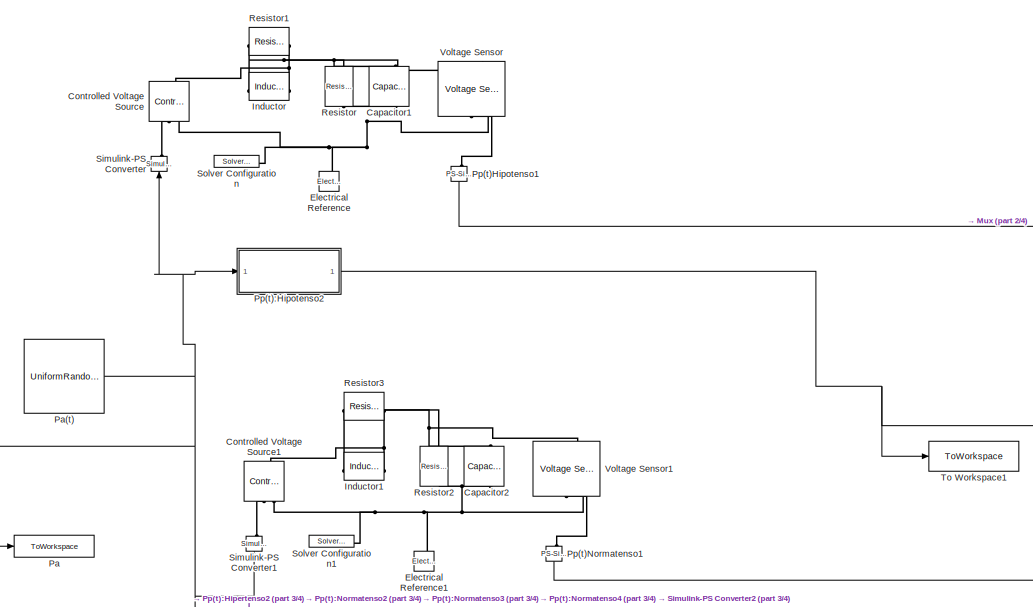
[diagram: root canvas - part 1/4, top center region]
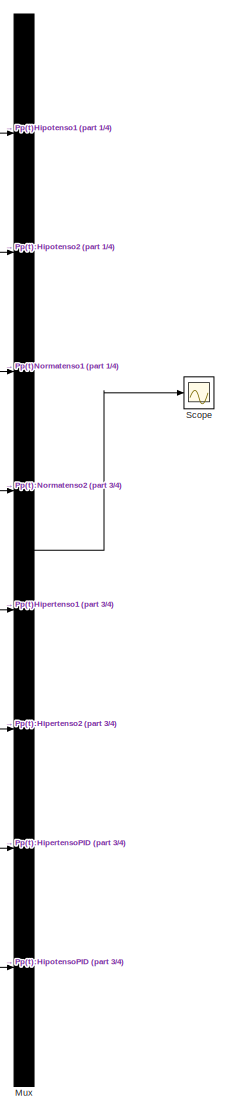
[diagram: root canvas - part 2/4, right side, full height]
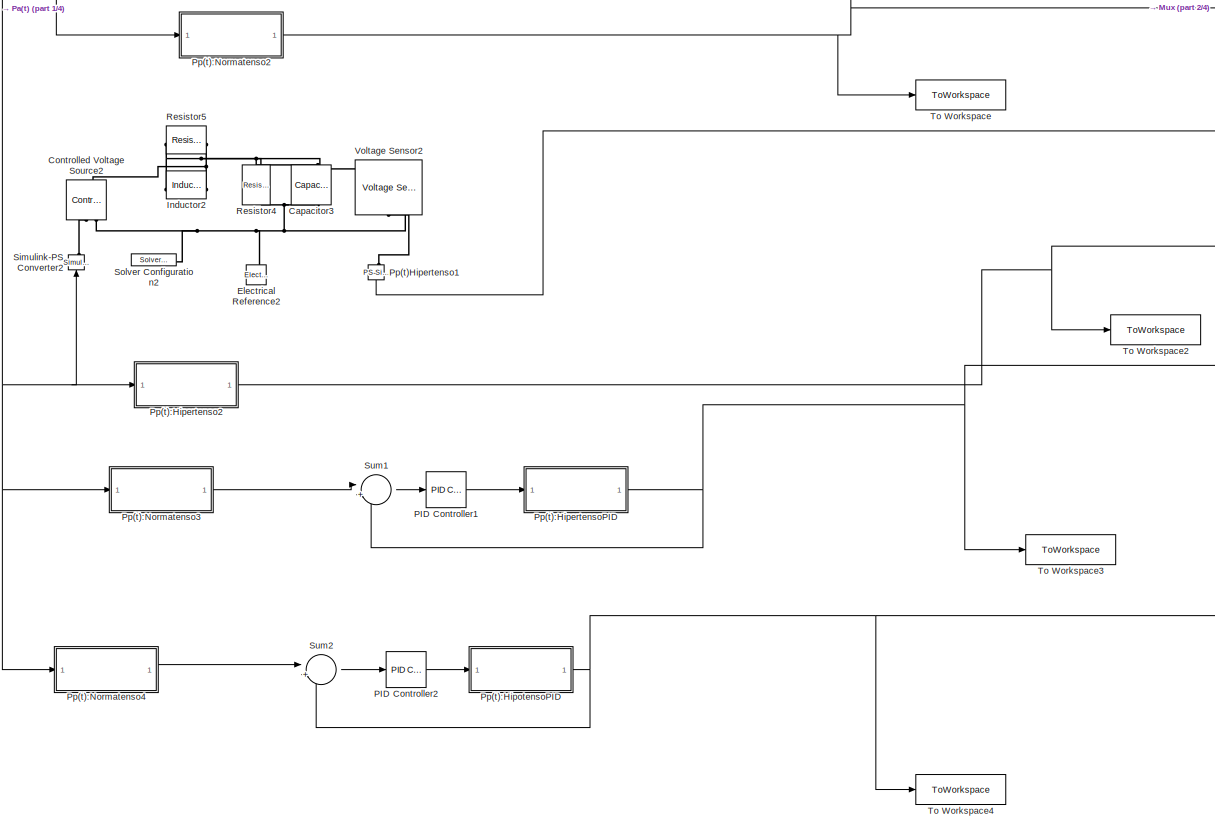
[diagram: root canvas - part 3/4, bottom center region]
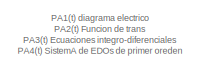
[diagram: root canvas - part 4/4, middle left region]
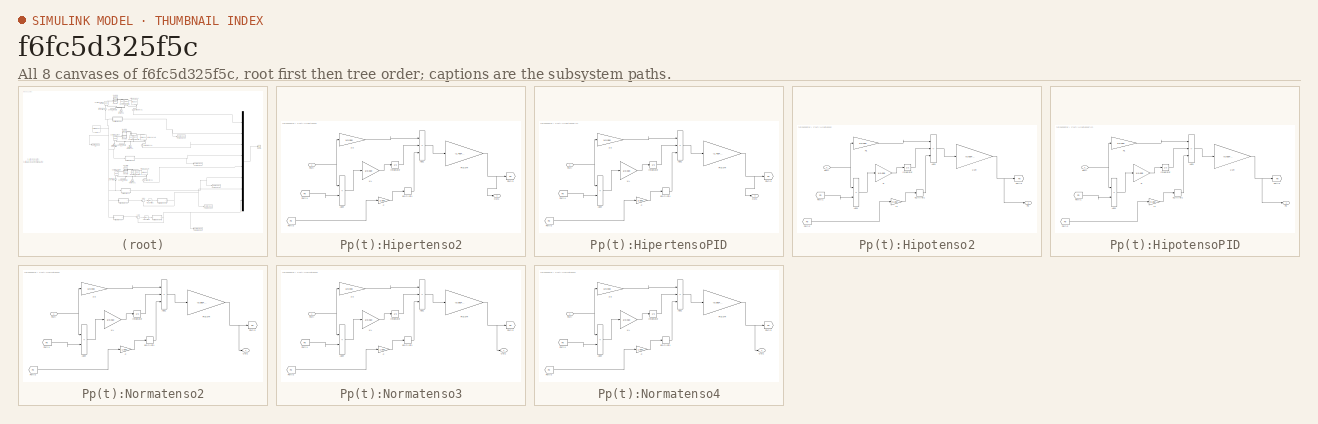
[diagram: thumbnail index - all 8 canvases of the model, root first then tree order]
MODEL slx_f6fc5d325f5c
KIND model
CONFIG AbsTol = auto
CONFIG EnableMultiTasking = off
CONFIG FixedStep = auto
CONFIG MaxStep = auto
CONFIG MinStep = auto
CONFIG RelTol = 1e-3
CONFIG SampleTimeConstraint = Unconstrained
CONFIG SolverName = VariableStepAuto
CONFIG StartTime = 0.0
CONFIG StopTime = 10.0
BLOCK [Reference] Capacitor1  REF=ee_lib/Passive/Capacitor
  NameLocation = left
  SourceBlock = ee_lib/Passive/Capacitor
  SourceType = Capacitor
BLOCK [Reference] Capacitor2  REF=ee_lib/Passive/Capacitor
  NameLocation = left
  SourceBlock = ee_lib/Passive/Capacitor
  SourceType = Capacitor
BLOCK [Reference] Capacitor3  REF=ee_lib/Passive/Capacitor
  NameLocation = left
  SourceBlock = ee_lib/Passive/Capacitor
  SourceType = Capacitor
BLOCK [Reference] Controlled Voltage Source  REF=fl_lib/Electrical/Electrical Sources/Controlled Voltage
Source
  NameLocation = right
  SourceBlock = fl_lib/Electrical/Electrical Sources/Controlled Voltage\nSource
  SourceType = Controlled Voltage\nSource
BLOCK [Reference] Controlled Voltage Source1  REF=fl_lib/Electrical/Electrical Sources/Controlled Voltage
Source
  NameLocation = right
  SourceBlock = fl_lib/Electrical/Electrical Sources/Controlled Voltage\nSource
  SourceType = Controlled Voltage\nSource
BLOCK [Reference] Controlled Voltage Source2  REF=fl_lib/Electrical/Electrical Sources/Controlled Voltage
Source
  NameLocation = right
  SourceBlock = fl_lib/Electrical/Electrical Sources/Controlled Voltage\nSource
  SourceType = Controlled Voltage\nSource
BLOCK [Reference] Electrical Reference  REF=fl_lib/Electrical/Electrical Elements/Electrical Reference
  NameLocation = right
  SourceBlock = fl_lib/Electrical/Electrical Elements/Electrical Reference
  SourceType = Electrical Reference
BLOCK [Reference] Electrical Reference1  REF=fl_lib/Electrical/Electrical Elements/Electrical Reference
  NameLocation = right
  SourceBlock = fl_lib/Electrical/Electrical Elements/Electrical Reference
  SourceType = Electrical Reference
BLOCK [Reference] Electrical Reference2  REF=fl_lib/Electrical/Electrical Elements/Electrical Reference
  NameLocation = right
  SourceBlock = fl_lib/Electrical/Electrical Elements/Electrical Reference
  SourceType = Electrical Reference
BLOCK [Reference] Inductor  REF=fl_lib/Electrical/Electrical Elements/Inductor
  SourceBlock = fl_lib/Electrical/Electrical Elements/Inductor
  SourceType = Inductor
BLOCK [Reference] Inductor1  REF=fl_lib/Electrical/Electrical Elements/Inductor
  SourceBlock = fl_lib/Electrical/Electrical Elements/Inductor
  SourceType = Inductor
BLOCK [Reference] Inductor2  REF=fl_lib/Electrical/Electrical Elements/Inductor
  SourceBlock = fl_lib/Electrical/Electrical Elements/Inductor
  SourceType = Inductor
BLOCK [Mux] Mux
  DisplayOption = bar
  Inputs = 8
BLOCK [Reference] PID Controller1  REF=slpidlib/PID Controller
  LibrarySourceBlock = simulink/Continuous/PID Controller
  SourceBlock = slpidlib/PID Controller
  SourceType = PID 1dof
BLOCK [Reference] PID Controller2  REF=slpidlib/PID Controller
  LibrarySourceBlock = simulink/Continuous/PID Controller
  SourceBlock = slpidlib/PID Controller
  SourceType = PID 1dof
BLOCK [ToWorkspace] Pa
  FixptAsFi = on
  MaxDataPoints = inf
  SampleTime = -1
  VariableName = Pa
BLOCK [UniformRandomNumber] Pa(t)
  Minimum = -0.2
  SampleTime = 0.5
  Seed = 106
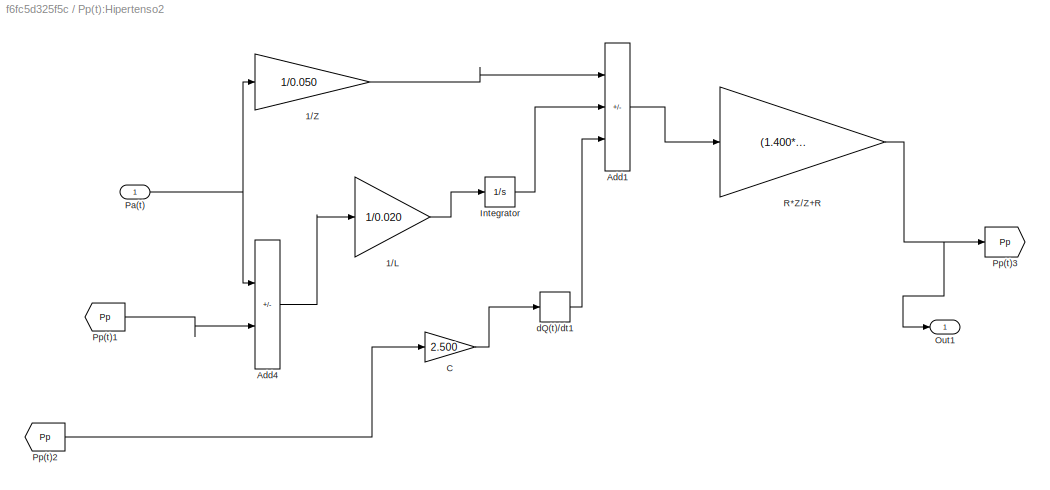
BLOCK [SubSystem] Pp(t):Hipertenso2
BLOCK [Gain] Pp(t):Hipertenso2/1//L
  Gain = 1/0.020
BLOCK [Gain] Pp(t):Hipertenso2/1//Z
  Gain = 1/0.050
BLOCK [Sum] Pp(t):Hipertenso2/Add1
  IconShape = rectangular
  Inputs = ++-
BLOCK [Sum] Pp(t):Hipertenso2/Add4
  IconShape = rectangular
  Inputs = +-
BLOCK [Gain] Pp(t):Hipertenso2/C
  Gain = 2.500
BLOCK [Integrator] Pp(t):Hipertenso2/Integrator
BLOCK [Outport] Pp(t):Hipertenso2/Out1
BLOCK [Inport] Pp(t):Hipertenso2/Pa(t)
BLOCK [From] Pp(t):Hipertenso2/Pp(t)1
  GotoTag = Pp
BLOCK [From] Pp(t):Hipertenso2/Pp(t)2
  GotoTag = Pp
BLOCK [Goto] Pp(t):Hipertenso2/Pp(t)3
  GotoTag = Pp
BLOCK [Gain] Pp(t):Hipertenso2/R*Z//Z+R
  Gain = (1.400*0.050)/(0.050+1.400)
BLOCK [Derivative] Pp(t):Hipertenso2/dQ(t)//dt1
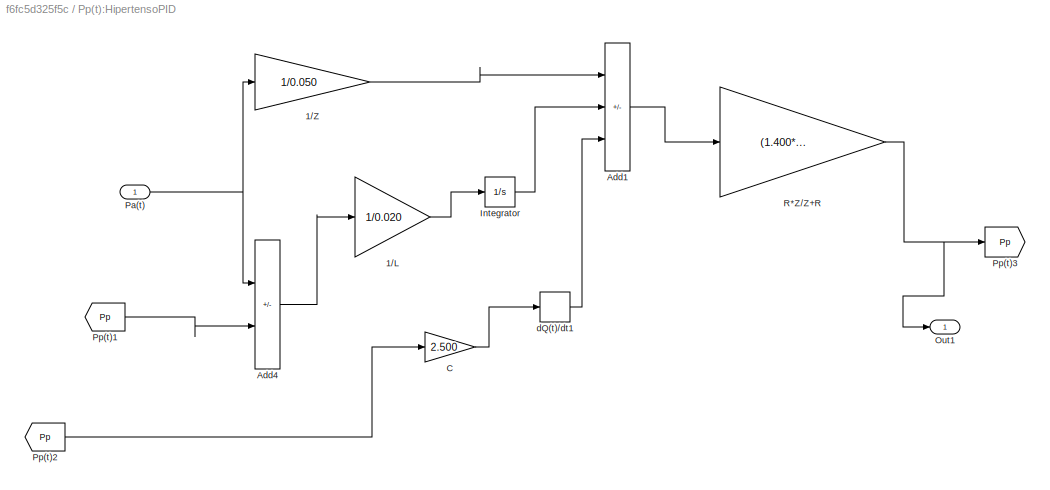
BLOCK [SubSystem] Pp(t):HipertensoPID
BLOCK [Gain] Pp(t):HipertensoPID/1//L
  Gain = 1/0.020
BLOCK [Gain] Pp(t):HipertensoPID/1//Z
  Gain = 1/0.050
BLOCK [Sum] Pp(t):HipertensoPID/Add1
  IconShape = rectangular
  Inputs = ++-
BLOCK [Sum] Pp(t):HipertensoPID/Add4
  IconShape = rectangular
  Inputs = +-
BLOCK [Gain] Pp(t):HipertensoPID/C
  Gain = 2.500
BLOCK [Integrator] Pp(t):HipertensoPID/Integrator
BLOCK [Outport] Pp(t):HipertensoPID/Out1
BLOCK [Inport] Pp(t):HipertensoPID/Pa(t)
BLOCK [From] Pp(t):HipertensoPID/Pp(t)1
  GotoTag = Pp
BLOCK [From] Pp(t):HipertensoPID/Pp(t)2
  GotoTag = Pp
BLOCK [Goto] Pp(t):HipertensoPID/Pp(t)3
  GotoTag = Pp
BLOCK [Gain] Pp(t):HipertensoPID/R*Z//Z+R
  Gain = (1.400*0.050)/(0.050+1.400)
BLOCK [Derivative] Pp(t):HipertensoPID/dQ(t)//dt1
BLOCK [SubSystem] Pp(t):Hipotenso2
BLOCK [Gain] Pp(t):Hipotenso2/1//2R
  Gain = (0.600*0.020)/(0.020+0.600)
BLOCK [Sum] Pp(t):Hipotenso2/Add1
  IconShape = rectangular
  Inputs = ++-
BLOCK [Sum] Pp(t):Hipotenso2/Add4
  IconShape = rectangular
  Inputs = +-
BLOCK [Integrator] Pp(t):Hipotenso2/Integrator
BLOCK [Gain] Pp(t):Hipotenso2/L1
  Gain = 0.250
BLOCK [Inport] Pp(t):Hipotenso2/Pa(t)
BLOCK [Outport] Pp(t):Hipotenso2/Pp
BLOCK [From] Pp(t):Hipotenso2/Pp(t)1
  GotoTag = Pp
BLOCK [From] Pp(t):Hipotenso2/Pp(t)2
  GotoTag = Pp
BLOCK [Goto] Pp(t):Hipotenso2/Pp(t)3
  GotoTag = Pp
BLOCK [Gain] Pp(t):Hipotenso2/R
  Gain = 1/0.005
BLOCK [Gain] Pp(t):Hipotenso2/R1
  Gain = 1/0.020
BLOCK [Derivative] Pp(t):Hipotenso2/dQ(t)//dt1
BLOCK [SubSystem] Pp(t):HipotensoPID
BLOCK [Gain] Pp(t):HipotensoPID/1//2R
  Gain = (0.600*0.020)/(0.020+0.600)
BLOCK [Sum] Pp(t):HipotensoPID/Add1
  IconShape = rectangular
  Inputs = ++-
BLOCK [Sum] Pp(t):HipotensoPID/Add4
  IconShape = rectangular
  Inputs = +-
BLOCK [Integrator] Pp(t):HipotensoPID/Integrator
BLOCK [Gain] Pp(t):HipotensoPID/L1
  Gain = 0.250
BLOCK [Inport] Pp(t):HipotensoPID/Pa(t)
BLOCK [Outport] Pp(t):HipotensoPID/Pp
BLOCK [From] Pp(t):HipotensoPID/Pp(t)1
  GotoTag = Pp
BLOCK [From] Pp(t):HipotensoPID/Pp(t)2
  GotoTag = Pp
BLOCK [Goto] Pp(t):HipotensoPID/Pp(t)3
  GotoTag = Pp
BLOCK [Gain] Pp(t):HipotensoPID/R
  Gain = 1/0.005
BLOCK [Gain] Pp(t):HipotensoPID/R1
  Gain = 1/0.020
BLOCK [Derivative] Pp(t):HipotensoPID/dQ(t)//dt1
BLOCK [SubSystem] Pp(t):Normatenso2
BLOCK [Gain] Pp(t):Normatenso2/1//L
  Gain = 1/0.010
BLOCK [Gain] Pp(t):Normatenso2/1//Z
  Gain = 1/0.033
BLOCK [Sum] Pp(t):Normatenso2/Add1
  IconShape = rectangular
  Inputs = ++-
BLOCK [Sum] Pp(t):Normatenso2/Add4
  IconShape = rectangular
  Inputs = +-
BLOCK [Gain] Pp(t):Normatenso2/C
  Gain = 1.500
BLOCK [Integrator] Pp(t):Normatenso2/Integrator
BLOCK [Outport] Pp(t):Normatenso2/Out1
BLOCK [Inport] Pp(t):Normatenso2/Pa(t)
BLOCK [From] Pp(t):Normatenso2/Pp(t)1
  GotoTag = Pp
BLOCK [From] Pp(t):Normatenso2/Pp(t)2
  GotoTag = Pp
BLOCK [Goto] Pp(t):Normatenso2/Pp(t)3
  GotoTag = Pp
BLOCK [Gain] Pp(t):Normatenso2/R*Z//Z+R
  Gain = (0.950*0.033)/(0.033+0.950)
BLOCK [Derivative] Pp(t):Normatenso2/dQ(t)//dt1
BLOCK [SubSystem] Pp(t):Normatenso3
BLOCK [Gain] Pp(t):Normatenso3/1//L
  Gain = 1/0.010
BLOCK [Gain] Pp(t):Normatenso3/1//Z
  Gain = 1/0.033
BLOCK [Sum] Pp(t):Normatenso3/Add1
  IconShape = rectangular
  Inputs = ++-
BLOCK [Sum] Pp(t):Normatenso3/Add4
  IconShape = rectangular
  Inputs = +-
BLOCK [Gain] Pp(t):Normatenso3/C
  Gain = 1.500
BLOCK [Integrator] Pp(t):Normatenso3/Integrator
BLOCK [Outport] Pp(t):Normatenso3/Out1
BLOCK [Inport] Pp(t):Normatenso3/Pa(t)
BLOCK [From] Pp(t):Normatenso3/Pp(t)1
  GotoTag = Pp
BLOCK [From] Pp(t):Normatenso3/Pp(t)2
  GotoTag = Pp
BLOCK [Goto] Pp(t):Normatenso3/Pp(t)3
  GotoTag = Pp
BLOCK [Gain] Pp(t):Normatenso3/R*Z//Z+R
  Gain = (0.950*0.033)/(0.033+0.950)
BLOCK [Derivative] Pp(t):Normatenso3/dQ(t)//dt1
BLOCK [SubSystem] Pp(t):Normatenso4
BLOCK [Gain] Pp(t):Normatenso4/1//L
  Gain = 1/0.010
BLOCK [Gain] Pp(t):Normatenso4/1//Z
  Gain = 1/0.033
BLOCK [Sum] Pp(t):Normatenso4/Add1
  IconShape = rectangular
  Inputs = ++-
BLOCK [Sum] Pp(t):Normatenso4/Add4
  IconShape = rectangular
  Inputs = +-
BLOCK [Gain] Pp(t):Normatenso4/C
  Gain = 1.500
BLOCK [Integrator] Pp(t):Normatenso4/Integrator
BLOCK [Outport] Pp(t):Normatenso4/Out1
BLOCK [Inport] Pp(t):Normatenso4/Pa(t)
BLOCK [From] Pp(t):Normatenso4/Pp(t)1
  GotoTag = Pp
BLOCK [From] Pp(t):Normatenso4/Pp(t)2
  GotoTag = Pp
BLOCK [Goto] Pp(t):Normatenso4/Pp(t)3
  GotoTag = Pp
BLOCK [Gain] Pp(t):Normatenso4/R*Z//Z+R
  Gain = (0.950*0.033)/(0.033+0.950)
BLOCK [Derivative] Pp(t):Normatenso4/dQ(t)//dt1
BLOCK [Reference] Pp(t)Hipertenso1  REF=nesl_utility/PS-Simulink
Converter
  NameLocation = left
  SourceBlock = nesl_utility/PS-Simulink\nConverter
  SourceType = PS-Simulink\nConverter
BLOCK [Reference] Pp(t)Hipotenso1  REF=nesl_utility/PS-Simulink
Converter
  NameLocation = left
  SourceBlock = nesl_utility/PS-Simulink\nConverter
  SourceType = PS-Simulink\nConverter
BLOCK [Reference] Pp(t)Normatenso1  REF=nesl_utility/PS-Simulink
Converter
  NameLocation = left
  SourceBlock = nesl_utility/PS-Simulink\nConverter
  SourceType = PS-Simulink\nConverter
BLOCK [Reference] Resistor  REF=fl_lib/Electrical/Electrical Elements/Resistor
  NameLocation = left
  SourceBlock = fl_lib/Electrical/Electrical Elements/Resistor
  SourceType = Resistor
BLOCK [Reference] Resistor1  REF=fl_lib/Electrical/Electrical Elements/Resistor
  NameLocation = top
  SourceBlock = fl_lib/Electrical/Electrical Elements/Resistor
  SourceType = Resistor
BLOCK [Reference] Resistor2  REF=fl_lib/Electrical/Electrical Elements/Resistor
  NameLocation = left
  SourceBlock = fl_lib/Electrical/Electrical Elements/Resistor
  SourceType = Resistor
BLOCK [Reference] Resistor3  REF=fl_lib/Electrical/Electrical Elements/Resistor
  NameLocation = top
  SourceBlock = fl_lib/Electrical/Electrical Elements/Resistor
  SourceType = Resistor
BLOCK [Reference] Resistor4  REF=fl_lib/Electrical/Electrical Elements/Resistor
  NameLocation = left
  SourceBlock = fl_lib/Electrical/Electrical Elements/Resistor
  SourceType = Resistor
BLOCK [Reference] Resistor5  REF=fl_lib/Electrical/Electrical Elements/Resistor
  NameLocation = top
  SourceBlock = fl_lib/Electrical/Electrical Elements/Resistor
  SourceType = Resistor
BLOCK [Scope] Scope
  Floating = off
  NumInputPorts = 1
  ScopeSpecificationString = Simulink.scopes.TimeScopeBlockCfg('CurrentConfiguration', extmgr.ConfigurationSet(extmgr.Configuration('Core','General UI',true),extmgr.Configuration('Core','Source UI',true),extmgr.Configuration('Sources','WiredSimulink',true),extmgr.Configuration('Visuals','Time Domain',true,'SerializedDisplays',{struct('MinYLimReal','-0.32996','MaxYLimReal','1.25646','YLabelReal','','MinYLimMag','0.00000','MaxY...<+2048ch>
BLOCK [Reference] Simulink-PS Converter  REF=nesl_utility/Simulink-PS
Converter
  NameLocation = right
  SourceBlock = nesl_utility/Simulink-PS\nConverter
  SourceType = Simulink-PS\nConverter
BLOCK [Reference] Simulink-PS Converter1  REF=nesl_utility/Simulink-PS
Converter
  NameLocation = right
  SourceBlock = nesl_utility/Simulink-PS\nConverter
  SourceType = Simulink-PS\nConverter
BLOCK [Reference] Simulink-PS Converter2  REF=nesl_utility/Simulink-PS
Converter
  NameLocation = right
  SourceBlock = nesl_utility/Simulink-PS\nConverter
  SourceType = Simulink-PS\nConverter
BLOCK [Reference] Solver Configuration  REF=nesl_utility/Solver
Configuration
  SourceBlock = nesl_utility/Solver\nConfiguration
  SourceType = Solver\nConfiguration
BLOCK [Reference] Solver Configuration1  REF=nesl_utility/Solver
Configuration
  SourceBlock = nesl_utility/Solver\nConfiguration
  SourceType = Solver\nConfiguration
BLOCK [Reference] Solver Configuration2  REF=nesl_utility/Solver
Configuration
  SourceBlock = nesl_utility/Solver\nConfiguration
  SourceType = Solver\nConfiguration
BLOCK [Sum] Sum1
  Inputs = |+-
BLOCK [Sum] Sum2
  Inputs = |+-
BLOCK [ToWorkspace] To Workspace
  FixptAsFi = on
  MaxDataPoints = inf
  SampleTime = -1
  VariableName = Pp1
BLOCK [ToWorkspace] To Workspace1
  FixptAsFi = on
  MaxDataPoints = inf
  SampleTime = -1
  VariableName = Pp0
BLOCK [ToWorkspace] To Workspace2
  FixptAsFi = on
  MaxDataPoints = inf
  SampleTime = -1
  VariableName = Pp2
BLOCK [ToWorkspace] To Workspace3
  FixptAsFi = on
  MaxDataPoints = inf
  SampleTime = -1
  VariableName = Pp3
BLOCK [ToWorkspace] To Workspace4
  FixptAsFi = on
  MaxDataPoints = inf
  SampleTime = -1
  VariableName = Pp4
BLOCK [Reference] Voltage Sensor  REF=fl_lib/Electrical/Electrical Sensors/Voltage Sensor
  NameLocation = right
  SourceBlock = fl_lib/Electrical/Electrical Sensors/Voltage Sensor
  SourceType = Voltage Sensor
BLOCK [Reference] Voltage Sensor1  REF=fl_lib/Electrical/Electrical Sensors/Voltage Sensor
  NameLocation = right
  SourceBlock = fl_lib/Electrical/Electrical Sensors/Voltage Sensor
  SourceType = Voltage Sensor
BLOCK [Reference] Voltage Sensor2  REF=fl_lib/Electrical/Electrical Sensors/Voltage Sensor
  NameLocation = right
  SourceBlock = fl_lib/Electrical/Electrical Sensors/Voltage Sensor
  SourceType = Voltage Sensor
ANNOTATION (root): PA1(t) diagrama electrico PA2(t) Funcion de trans PA3(t) Ecuaciones integro-diferenciales PA4(t) SistemA de EDOs de primer oreden
LINE Mux:1 -> Scope:1
LINE PID Controller1:1 -> Pp(t):HipertensoPID:1
LINE PID Controller2:1 -> Pp(t):HipotensoPID:1
NET Pa(t):1 -> Pa:1, Pp(t):Hipertenso2:1, Pp(t):Hipotenso2:1, Pp(t):Normatenso2:1, Pp(t):Normatenso3:1, Pp(t):Normatenso4:1, Simulink-PS Converter1:1, Simulink-PS Converter2:1, Simulink-PS Converter:1
LINE Pp(t):Hipertenso2/1//L:1 -> Pp(t):Hipertenso2/Integrator:1
LINE Pp(t):Hipertenso2/1//Z:1 -> Pp(t):Hipertenso2/Add1:1
LINE Pp(t):Hipertenso2/Add1:1 -> Pp(t):Hipertenso2/R*Z//Z+R:1
LINE Pp(t):Hipertenso2/Add4:1 -> Pp(t):Hipertenso2/1//L:1
LINE Pp(t):Hipertenso2/C:1 -> Pp(t):Hipertenso2/dQ(t)//dt1:1
LINE Pp(t):Hipertenso2/Integrator:1 -> Pp(t):Hipertenso2/Add1:2
NET Pp(t):Hipertenso2/Pa(t):1 -> Pp(t):Hipertenso2/1//Z:1, Pp(t):Hipertenso2/Add4:1
LINE Pp(t):Hipertenso2/Pp(t)1:1 -> Pp(t):Hipertenso2/Add4:2
LINE Pp(t):Hipertenso2/Pp(t)2:1 -> Pp(t):Hipertenso2/C:1
NET Pp(t):Hipertenso2/R*Z//Z+R:1 -> Pp(t):Hipertenso2/Out1:1, Pp(t):Hipertenso2/Pp(t)3:1
LINE Pp(t):Hipertenso2/dQ(t)//dt1:1 -> Pp(t):Hipertenso2/Add1:3
NET Pp(t):Hipertenso2:1 -> Mux:6, To Workspace2:1
LINE Pp(t):HipertensoPID/1//L:1 -> Pp(t):HipertensoPID/Integrator:1
LINE Pp(t):HipertensoPID/1//Z:1 -> Pp(t):HipertensoPID/Add1:1
LINE Pp(t):HipertensoPID/Add1:1 -> Pp(t):HipertensoPID/R*Z//Z+R:1
LINE Pp(t):HipertensoPID/Add4:1 -> Pp(t):HipertensoPID/1//L:1
LINE Pp(t):HipertensoPID/C:1 -> Pp(t):HipertensoPID/dQ(t)//dt1:1
LINE Pp(t):HipertensoPID/Integrator:1 -> Pp(t):HipertensoPID/Add1:2
NET Pp(t):HipertensoPID/Pa(t):1 -> Pp(t):HipertensoPID/1//Z:1, Pp(t):HipertensoPID/Add4:1
LINE Pp(t):HipertensoPID/Pp(t)1:1 -> Pp(t):HipertensoPID/Add4:2
LINE Pp(t):HipertensoPID/Pp(t)2:1 -> Pp(t):HipertensoPID/C:1
NET Pp(t):HipertensoPID/R*Z//Z+R:1 -> Pp(t):HipertensoPID/Out1:1, Pp(t):HipertensoPID/Pp(t)3:1
LINE Pp(t):HipertensoPID/dQ(t)//dt1:1 -> Pp(t):HipertensoPID/Add1:3
NET Pp(t):HipertensoPID:1 -> Mux:7, Sum1:2, To Workspace3:1
NET Pp(t):Hipotenso2/1//2R:1 -> Pp(t):Hipotenso2/Pp(t)3:1, Pp(t):Hipotenso2/Pp:1
LINE Pp(t):Hipotenso2/Add1:1 -> Pp(t):Hipotenso2/1//2R:1
LINE Pp(t):Hipotenso2/Add4:1 -> Pp(t):Hipotenso2/R:1
LINE Pp(t):Hipotenso2/Integrator:1 -> Pp(t):Hipotenso2/Add1:2
LINE Pp(t):Hipotenso2/L1:1 -> Pp(t):Hipotenso2/dQ(t)//dt1:1
NET Pp(t):Hipotenso2/Pa(t):1 -> Pp(t):Hipotenso2/Add4:1, Pp(t):Hipotenso2/R1:1
LINE Pp(t):Hipotenso2/Pp(t)1:1 -> Pp(t):Hipotenso2/Add4:2
LINE Pp(t):Hipotenso2/Pp(t)2:1 -> Pp(t):Hipotenso2/L1:1
LINE Pp(t):Hipotenso2/R1:1 -> Pp(t):Hipotenso2/Add1:1
LINE Pp(t):Hipotenso2/R:1 -> Pp(t):Hipotenso2/Integrator:1
LINE Pp(t):Hipotenso2/dQ(t)//dt1:1 -> Pp(t):Hipotenso2/Add1:3
NET Pp(t):Hipotenso2:1 -> Mux:2, To Workspace1:1
NET Pp(t):HipotensoPID/1//2R:1 -> Pp(t):HipotensoPID/Pp(t)3:1, Pp(t):HipotensoPID/Pp:1
LINE Pp(t):HipotensoPID/Add1:1 -> Pp(t):HipotensoPID/1//2R:1
LINE Pp(t):HipotensoPID/Add4:1 -> Pp(t):HipotensoPID/R:1
LINE Pp(t):HipotensoPID/Integrator:1 -> Pp(t):HipotensoPID/Add1:2
LINE Pp(t):HipotensoPID/L1:1 -> Pp(t):HipotensoPID/dQ(t)//dt1:1
NET Pp(t):HipotensoPID/Pa(t):1 -> Pp(t):HipotensoPID/Add4:1, Pp(t):HipotensoPID/R1:1
LINE Pp(t):HipotensoPID/Pp(t)1:1 -> Pp(t):HipotensoPID/Add4:2
LINE Pp(t):HipotensoPID/Pp(t)2:1 -> Pp(t):HipotensoPID/L1:1
LINE Pp(t):HipotensoPID/R1:1 -> Pp(t):HipotensoPID/Add1:1
LINE Pp(t):HipotensoPID/R:1 -> Pp(t):HipotensoPID/Integrator:1
LINE Pp(t):HipotensoPID/dQ(t)//dt1:1 -> Pp(t):HipotensoPID/Add1:3
NET Pp(t):HipotensoPID:1 -> Mux:8, Sum2:2, To Workspace4:1
LINE Pp(t):Normatenso2/1//L:1 -> Pp(t):Normatenso2/Integrator:1
LINE Pp(t):Normatenso2/1//Z:1 -> Pp(t):Normatenso2/Add1:1
LINE Pp(t):Normatenso2/Add1:1 -> Pp(t):Normatenso2/R*Z//Z+R:1
LINE Pp(t):Normatenso2/Add4:1 -> Pp(t):Normatenso2/1//L:1
LINE Pp(t):Normatenso2/C:1 -> Pp(t):Normatenso2/dQ(t)//dt1:1
LINE Pp(t):Normatenso2/Integrator:1 -> Pp(t):Normatenso2/Add1:2
NET Pp(t):Normatenso2/Pa(t):1 -> Pp(t):Normatenso2/1//Z:1, Pp(t):Normatenso2/Add4:1
LINE Pp(t):Normatenso2/Pp(t)1:1 -> Pp(t):Normatenso2/Add4:2
LINE Pp(t):Normatenso2/Pp(t)2:1 -> Pp(t):Normatenso2/C:1
NET Pp(t):Normatenso2/R*Z//Z+R:1 -> Pp(t):Normatenso2/Out1:1, Pp(t):Normatenso2/Pp(t)3:1
LINE Pp(t):Normatenso2/dQ(t)//dt1:1 -> Pp(t):Normatenso2/Add1:3
NET Pp(t):Normatenso2:1 -> Mux:4, To Workspace:1
LINE Pp(t):Normatenso3/1//L:1 -> Pp(t):Normatenso3/Integrator:1
LINE Pp(t):Normatenso3/1//Z:1 -> Pp(t):Normatenso3/Add1:1
LINE Pp(t):Normatenso3/Add1:1 -> Pp(t):Normatenso3/R*Z//Z+R:1
LINE Pp(t):Normatenso3/Add4:1 -> Pp(t):Normatenso3/1//L:1
LINE Pp(t):Normatenso3/C:1 -> Pp(t):Normatenso3/dQ(t)//dt1:1
LINE Pp(t):Normatenso3/Integrator:1 -> Pp(t):Normatenso3/Add1:2
NET Pp(t):Normatenso3/Pa(t):1 -> Pp(t):Normatenso3/1//Z:1, Pp(t):Normatenso3/Add4:1
LINE Pp(t):Normatenso3/Pp(t)1:1 -> Pp(t):Normatenso3/Add4:2
LINE Pp(t):Normatenso3/Pp(t)2:1 -> Pp(t):Normatenso3/C:1
NET Pp(t):Normatenso3/R*Z//Z+R:1 -> Pp(t):Normatenso3/Out1:1, Pp(t):Normatenso3/Pp(t)3:1
LINE Pp(t):Normatenso3/dQ(t)//dt1:1 -> Pp(t):Normatenso3/Add1:3
LINE Pp(t):Normatenso3:1 -> Sum1:1
LINE Pp(t):Normatenso4/1//L:1 -> Pp(t):Normatenso4/Integrator:1
LINE Pp(t):Normatenso4/1//Z:1 -> Pp(t):Normatenso4/Add1:1
LINE Pp(t):Normatenso4/Add1:1 -> Pp(t):Normatenso4/R*Z//Z+R:1
LINE Pp(t):Normatenso4/Add4:1 -> Pp(t):Normatenso4/1//L:1
LINE Pp(t):Normatenso4/C:1 -> Pp(t):Normatenso4/dQ(t)//dt1:1
LINE Pp(t):Normatenso4/Integrator:1 -> Pp(t):Normatenso4/Add1:2
NET Pp(t):Normatenso4/Pa(t):1 -> Pp(t):Normatenso4/1//Z:1, Pp(t):Normatenso4/Add4:1
LINE Pp(t):Normatenso4/Pp(t)1:1 -> Pp(t):Normatenso4/Add4:2
LINE Pp(t):Normatenso4/Pp(t)2:1 -> Pp(t):Normatenso4/C:1
NET Pp(t):Normatenso4/R*Z//Z+R:1 -> Pp(t):Normatenso4/Out1:1, Pp(t):Normatenso4/Pp(t)3:1
LINE Pp(t):Normatenso4/dQ(t)//dt1:1 -> Pp(t):Normatenso4/Add1:3
LINE Pp(t):Normatenso4:1 -> Sum2:1
LINE Pp(t)Hipertenso1:1 -> Mux:5
LINE Pp(t)Hipotenso1:1 -> Mux:1
LINE Pp(t)Normatenso1:1 -> Mux:3
LINE Sum1:1 -> PID Controller1:1
LINE Sum2:1 -> PID Controller2:1
PNET net1: Capacitor1:LConn1 -- Inductor:RConn1 -- Resistor1:LConn1 -- Resistor:LConn1 -- Voltage Sensor:LConn1
PNET net2: Capacitor1:RConn1 -- Controlled Voltage Source:RConn2 -- Electrical Reference:LConn1 -- Resistor:RConn1 -- Solver Configuration:RConn1 -- Voltage Sensor:RConn2
PNET net3: Capacitor2:LConn1 -- Inductor1:RConn1 -- Resistor2:LConn1 -- Resistor3:LConn1 -- Voltage Sensor1:LConn1
PNET net4: Capacitor2:RConn1 -- Controlled Voltage Source1:RConn2 -- Electrical Reference1:LConn1 -- Resistor2:RConn1 -- Solver Configuration1:RConn1 -- Voltage Sensor1:RConn2
PNET net5: Capacitor3:LConn1 -- Inductor2:RConn1 -- Resistor4:LConn1 -- Resistor5:LConn1 -- Voltage Sensor2:LConn1
PNET net6: Capacitor3:RConn1 -- Controlled Voltage Source2:RConn2 -- Electrical Reference2:LConn1 -- Resistor4:RConn1 -- Solver Configuration2:RConn1 -- Voltage Sensor2:RConn2
PNET net7: Controlled Voltage Source1:LConn1 -- Inductor1:LConn1 -- Resistor3:RConn1
PLINE Controlled Voltage Source1:RConn1 -- Simulink-PS Converter1:RConn1
PNET net8: Controlled Voltage Source2:LConn1 -- Inductor2:LConn1 -- Resistor5:RConn1
PLINE Controlled Voltage Source2:RConn1 -- Simulink-PS Converter2:RConn1
PNET net9: Controlled Voltage Source:LConn1 -- Inductor:LConn1 -- Resistor1:RConn1
PLINE Controlled Voltage Source:RConn1 -- Simulink-PS Converter:RConn1
PLINE Pp(t)Hipertenso1:LConn1 -- Voltage Sensor2:RConn1
PLINE Pp(t)Hipotenso1:LConn1 -- Voltage Sensor:RConn1
PLINE Pp(t)Normatenso1:LConn1 -- Voltage Sensor1:RConn1
note: NET lines group one-source signal fan-out (src -> all destinations, sorted); 1:1 wires keep LINE; PNET lines group multi-terminal physical nets as a canonical sorted terminal list (undirected conserving connections); 2-terminal nets keep the pairwise PLINE form
